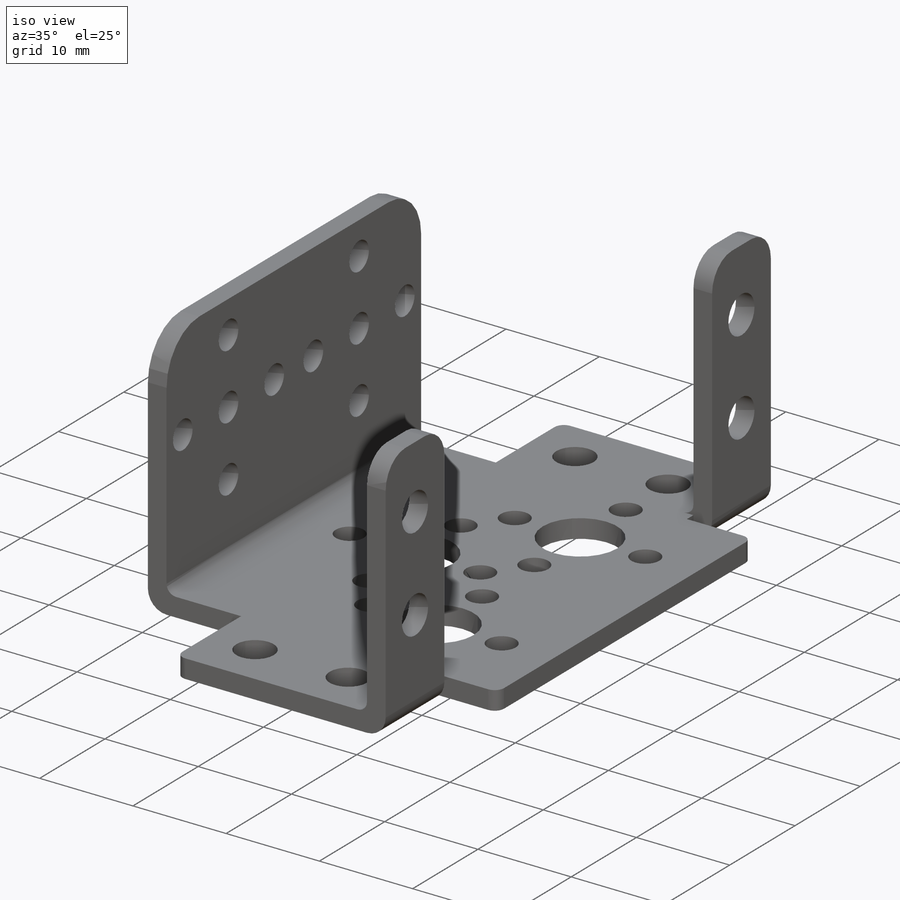
[diagram: iso view]
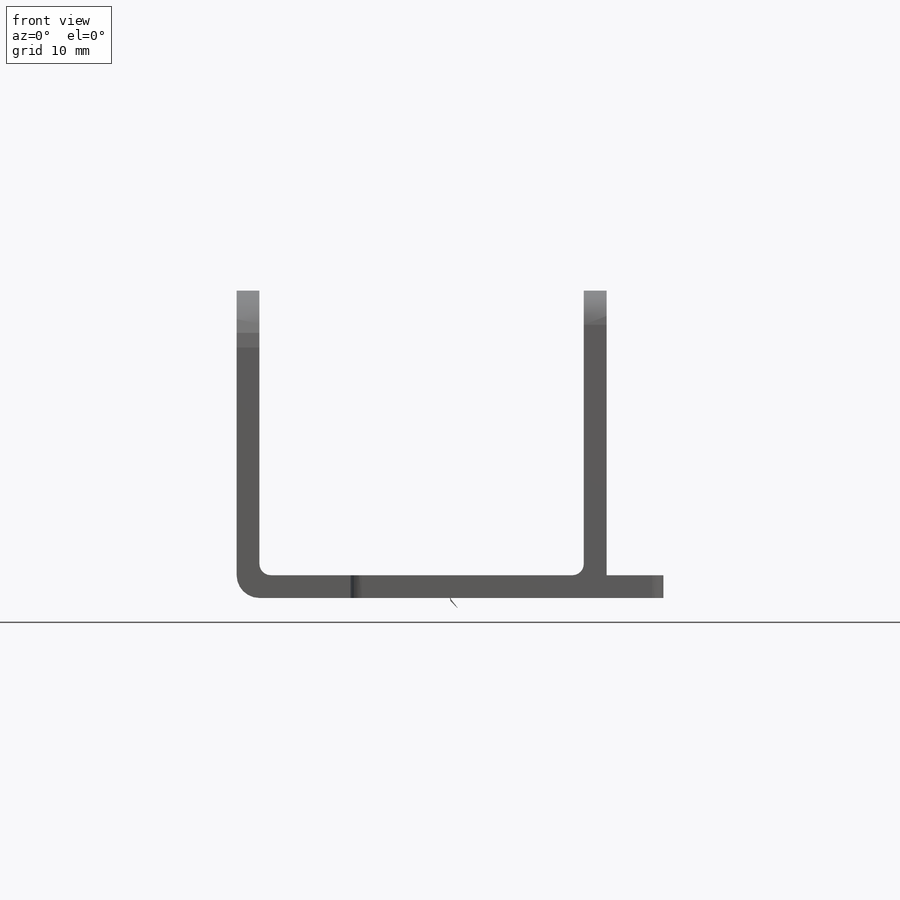
[diagram: front view]
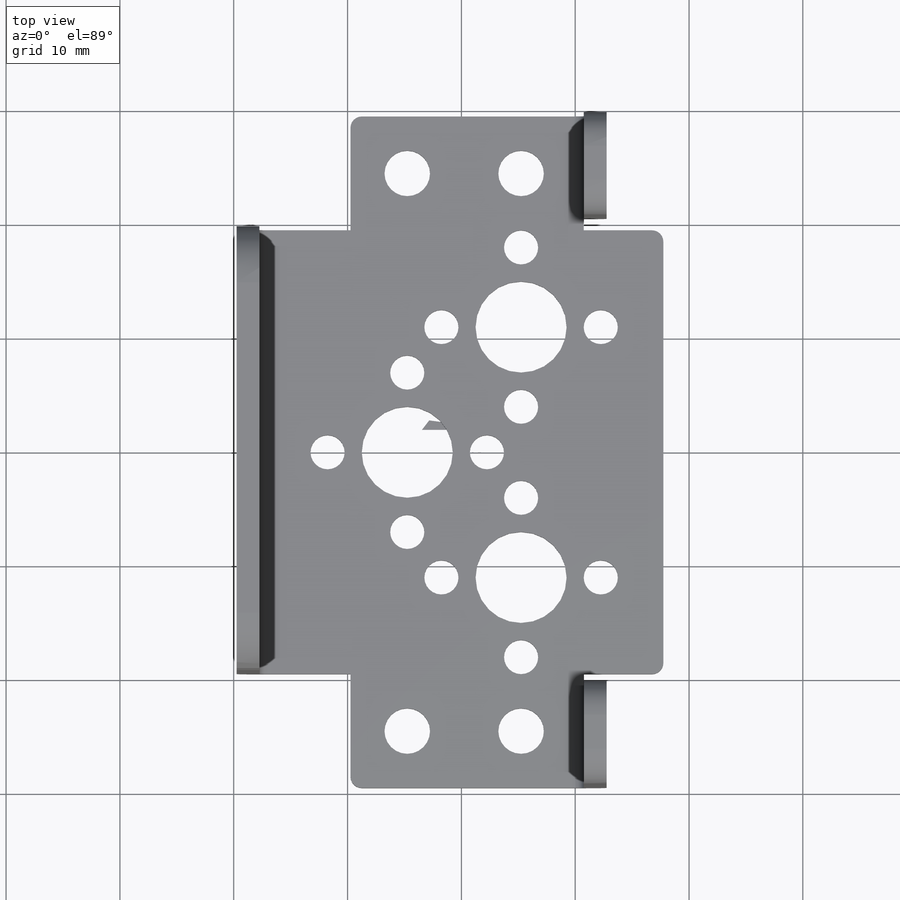
[diagram: top view]
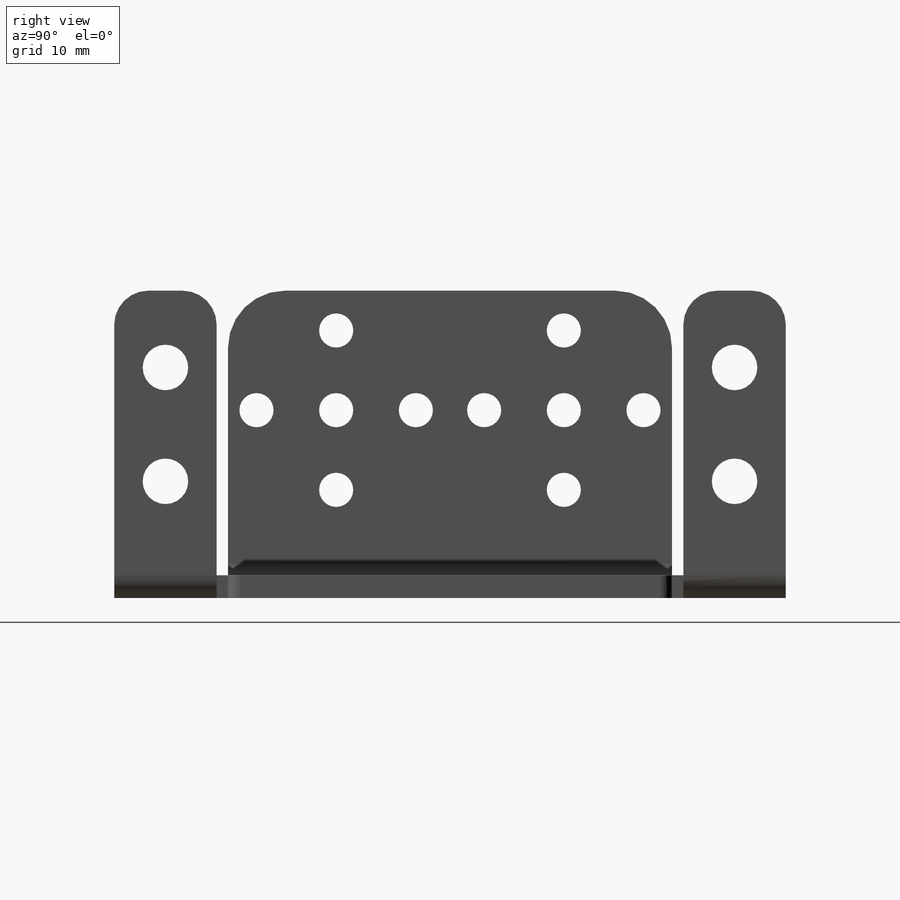
[diagram: right view]
SOLIDWORKS PART (.sldprt)
format: sldprt  version: not decoded by parser v0  size: 456,704 bytes
history: native  units: mm
features: sketch x7, extrude x4, fillet x4, cut_extrude x3, material x1 (+13 scaffold rows collapsed)
feature tree (32):
  scaffold x13  (default folders/planes/origin — collapsed)
  material  "5052-H32"
  sketch  "Sketch1"  dims[D1=39.0mm D2=35.49mm]
  extrude  "Boss-Extrude1"  Depth=2mm
  sketch  "Sketch2"  dims[D1=29.5mm D2=8.0mm D3=28.5mm D4=29.5mm D5=10.0mm]
  extrude  "Boss-Extrude2"  Depth=2mm
  sketch  "Sketch3"  dims[D1=39.0mm D2=27.0mm]
  extrude  "Boss-Extrude3"  Depth=2mm
  sketch  "Sketch4"  dims[D1=9.0mm D2=9.0mm]
  extrude  "Boss-Extrude4"  Depth=2mm
  sketch  "Sketch5"  dims[c1.D2=8.0mm c1.D3=14.0mm c1.D4=3.0mm c1.D5=3.0mm c1.D6=3.0mm c1.D7=3.0mm c1.D11=8.0mm c1.D12=8.0mm c1.D13=14.0mm c1.D14=14.0mm c1.D15=3.0mm c1.D16=3.0mm c1.D17=3.0mm c1.D18=3.0mm c1.D19=3.0mm c1.D20=3.0mm c1.D21=3.0mm c1.D22=3.0mm c2.D6=8.0mm c2.D7=14.0mm c2.D8=3.0mm c2.D10=4.0mm c2.D11=4.0mm c2.D1=12.5mm c2.D3=10.0mm c3.D8=10.0mm c3.D9=22.0mm c3.D10=11.0mm c3.D1=22.0mm c3.D2=11.0mm c3.D3=12.5mm c3.D4=12.5mm c3.D5=10.0mm c3.D7=10.0mm c4.D9=5.0mm c4.D11=10.0mm]
  cut_extrude  "Cut-Extrude1"  Depth=2mm
  sketch  "Sketch6"  dims[D1=4.0mm D2=4.0mm D7=4.0mm D8=4.0mm D3=6.75mm D4=10.0mm D5=10.0mm D6=6.75mm]
  cut_extrude  "Cut-Extrude2"  Depth=2mm
  sketch  "Sketch7"  dims[c1.D1=~3.244801mm c1.D2=3.0mm c1.D4=14.0mm c1.D5=3.0mm c1.D6=3.0mm c1.D7=14.0mm c2.D1=9.5mm c2.D2=9.5mm c3.D1=2.0mm c3.D3=9.5mm c3.D8=9.5mm]
  cut_extrude  "Cut-Extrude3"  Depth=2mm
  fillet  "Fillet1"  Radius=2mm
  fillet  "Fillet2"  Radius=1mm
  fillet  "Fillet3"  Radius=3mm
  fillet  "Fillet4"  Radius=5mm
decode coverage: 18 of 18 modeling features carry decoded parameters
note: ~ marks probable driven/reference dimensions
note: suppression state not decoded; provenance and decode notes live in map.json
